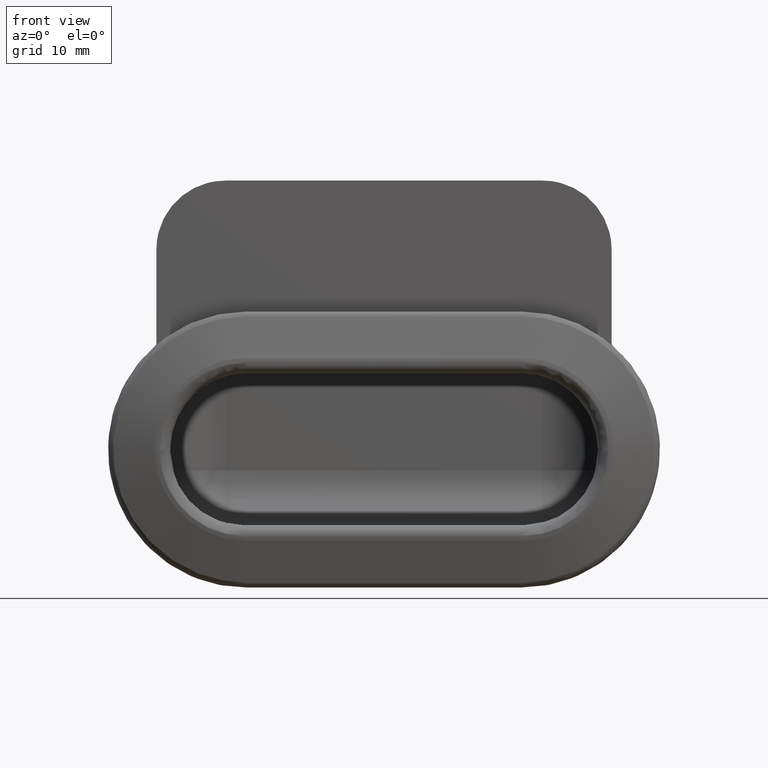
[diagram: clean part render]
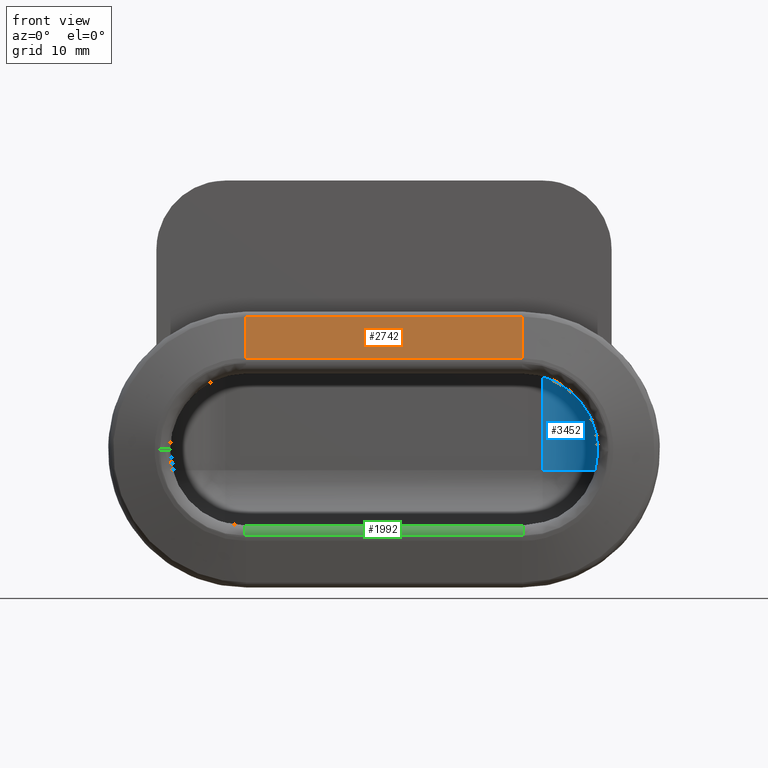
[diagram: same view with three faces highlighted in distinct colors, each labeled with its STEP entity id]
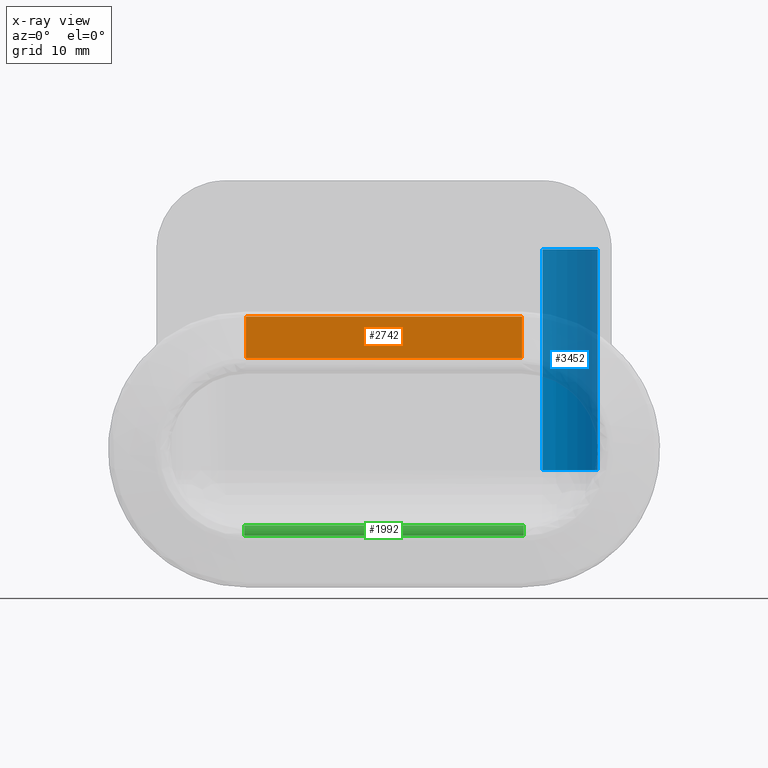
[diagram: x-ray of the same camera — body ghosted, the three highlighted faces saturated]
A machine part, front view with three faces highlighted in distinct colors.
The next image is the same camera in x-ray (body ghosted, the three faces saturated) — at least one of them is partly hidden behind the body in this view.
Their STEP definitions:

[orange] entity #2742 — the highlighted face is a freeform B-spline surface patch.
#1399=CARTESIAN_POINT('',(-20.0,1.792777465113545,19.274721127897401));
#1400=VERTEX_POINT('',#1399);
#1463=CARTESIAN_POINT('',(20.0,1.792777465113545,19.274721127897401));
#1464=VERTEX_POINT('',#1463);
#1486=CARTESIAN_POINT('',(20.0,1.792777465113545,19.274721127897401));
#1487=CARTESIAN_POINT('',(-20.0,1.792777465113545,19.274721127897401));
#1488=QUASI_UNIFORM_CURVE('',1,(#1486,#1487),.UNSPECIFIED.,.F.,.U.);
#1489=EDGE_CURVE('',#1464,#1400,#1488,.T.);
#2569=CARTESIAN_POINT('',(20.0,0.076952104718354,13.269332366514240));
#2570=VERTEX_POINT('',#2569);
#2645=CARTESIAN_POINT('',(-20.0,0.076952104718354,13.269332366514240));
#2646=VERTEX_POINT('',#2645);
#2709=CARTESIAN_POINT('',(-20.0,0.076952104718354,13.269332366514240));
#2710=CARTESIAN_POINT('',(20.0,0.076952104718354,13.269332366514240));
#2711=QUASI_UNIFORM_CURVE('',1,(#2709,#2710),.UNSPECIFIED.,.F.,.U.);
#2712=EDGE_CURVE('',#2646,#2570,#2711,.T.);
#2723=CARTESIAN_POINT('',(-21.997999922472239,1.878482944669819,19.574690306344358));
#2724=CARTESIAN_POINT('',(-21.997999922472239,-0.008753543585332,12.969362597451340));
#2725=CARTESIAN_POINT('',(21.998000995355842,1.878482944669819,19.574690306344358));
#2726=CARTESIAN_POINT('',(21.998000995355842,-0.008753543585332,12.969362597451340));
#2727=B_SPLINE_SURFACE_WITH_KNOTS('',1,1,((#2723,#2725),(#2724,#2726)),.UNSPECIFIED.,.F.,.F.,.U.,(2,2),(2,2),(0.0,6.869644510778667),(0.0,43.996000917828077),.UNSPECIFIED.);
#2728=CARTESIAN_POINT('',(20.0,0.076952104718354,13.269332366514240));
#2729=CARTESIAN_POINT('',(20.0,1.792777465113545,19.274721127897401));
#2730=QUASI_UNIFORM_CURVE('',1,(#2728,#2729),.UNSPECIFIED.,.F.,.U.);
#2731=EDGE_CURVE('',#2570,#1464,#2730,.T.);
#2732=ORIENTED_EDGE('',*,*,#2731,.T.);
#2733=ORIENTED_EDGE('',*,*,#1489,.T.);
#2734=CARTESIAN_POINT('',(-20.0,1.792777465113545,19.274721127897401));
#2735=CARTESIAN_POINT('',(-20.0,0.076952104718354,13.269332366514240));
#2736=QUASI_UNIFORM_CURVE('',1,(#2734,#2735),.UNSPECIFIED.,.F.,.U.);
#2737=EDGE_CURVE('',#1400,#2646,#2736,.T.);
#2738=ORIENTED_EDGE('',*,*,#2737,.T.);
#2739=ORIENTED_EDGE('',*,*,#2712,.T.);
#2740=EDGE_LOOP('',(#2732,#2733,#2738,#2739));
#2741=FACE_OUTER_BOUND('',#2740,.T.);
#2742=ADVANCED_FACE('',(#2741),#2727,.T.);

[blue] entity #3452 — the highlighted face is a freeform B-spline surface patch.
#3179=CARTESIAN_POINT('',(31.0,27.0,-3.0));
#3180=VERTEX_POINT('',#3179);
#3228=CARTESIAN_POINT('',(23.0,35.0,-3.0));
#3229=VERTEX_POINT('',#3228);
#3230=CARTESIAN_POINT('',(23.0,35.0,-3.0));
#3231=CARTESIAN_POINT('',(31.000000000000007,34.999999999999993,-3.0));
#3232=CARTESIAN_POINT('',(31.0,27.0,-3.0));
#3240=(BOUNDED_CURVE()B_SPLINE_CURVE(2,(#3230,#3231,#3232),.UNSPECIFIED.,.F.,.U.)CURVE()GEOMETRIC_REPRESENTATION_ITEM()QUASI_UNIFORM_CURVE()RATIONAL_B_SPLINE_CURVE((1.0,0.707106781186548,1.0))REPRESENTATION_ITEM(''));
#3241=EDGE_CURVE('',#3229,#3180,#3240,.T.);
#3408=CARTESIAN_POINT('',(22.651044901077309,34.992385772654863,-3.800000000000002));
#3409=CARTESIAN_POINT('',(22.651044901077309,34.992385772654863,29.820000000000011));
#3410=CARTESIAN_POINT('',(31.608482115672295,35.383475927487872,-3.800000000000001));
#3411=CARTESIAN_POINT('',(31.608482115672295,35.383475927487872,29.820000000000000));
#3412=CARTESIAN_POINT('',(30.980343305855342,26.439535263651820,-3.800000000000002));
#3413=CARTESIAN_POINT('',(30.980343305855342,26.439535263651820,29.820000000000004));
#3421=(BOUNDED_SURFACE()B_SPLINE_SURFACE(1,2,((#3408,#3410,#3412),(#3409,#3411,#3413)),.UNSPECIFIED.,.F.,.F.,.U.)B_SPLINE_SURFACE_WITH_KNOTS((2,2),(3,3),(0.0,33.620000000000012),(0.0,14.333940318735880),.UNSPECIFIED.)GEOMETRIC_REPRESENTATION_ITEM()RATIONAL_B_SPLINE_SURFACE(((1.0,0.664513898535122,0.996233561259061),(1.0,0.664513898535122,0.996233561259061)))REPRESENTATION_ITEM('')SURFACE());
#3422=CARTESIAN_POINT('',(23.0,35.0,29.0));
#3423=VERTEX_POINT('',#3422);
#3424=CARTESIAN_POINT('',(23.0,35.0,-3.0));
#3425=CARTESIAN_POINT('',(23.0,35.0,29.0));
#3426=QUASI_UNIFORM_CURVE('',1,(#3424,#3425),.UNSPECIFIED.,.F.,.U.);
#3427=EDGE_CURVE('',#3229,#3423,#3426,.T.);
#3428=ORIENTED_EDGE('',*,*,#3427,.F.);
#3429=ORIENTED_EDGE('',*,*,#3241,.T.);
#3430=CARTESIAN_POINT('',(31.0,27.0,29.0));
#3431=VERTEX_POINT('',#3430);
#3432=CARTESIAN_POINT('',(31.0,27.0,29.0));
#3433=CARTESIAN_POINT('',(31.0,27.0,-3.0));
#3434=QUASI_UNIFORM_CURVE('',1,(#3432,#3433),.UNSPECIFIED.,.F.,.U.);
#3435=EDGE_CURVE('',#3431,#3180,#3434,.T.);
#3436=ORIENTED_EDGE('',*,*,#3435,.F.);
#3437=CARTESIAN_POINT('',(31.0,27.0,29.0));
#3438=CARTESIAN_POINT('',(31.000000000000007,34.999999999999993,29.0));
#3439=CARTESIAN_POINT('',(23.0,35.0,29.0));
#3447=(BOUNDED_CURVE()B_SPLINE_CURVE(2,(#3437,#3438,#3439),.UNSPECIFIED.,.F.,.U.)CURVE()GEOMETRIC_REPRESENTATION_ITEM()QUASI_UNIFORM_CURVE()RATIONAL_B_SPLINE_CURVE((1.0,0.707106781186548,1.0))REPRESENTATION_ITEM(''));
#3448=EDGE_CURVE('',#3431,#3423,#3447,.T.);
#3449=ORIENTED_EDGE('',*,*,#3448,.T.);
#3450=EDGE_LOOP('',(#3428,#3429,#3436,#3449));
#3451=FACE_OUTER_BOUND('',#3450,.T.);
#3452=ADVANCED_FACE('',(#3451),#3421,.F.);

[green] entity #1992 — the highlighted face is a freeform B-spline surface patch.
#1755=CARTESIAN_POINT('',(-20.249742798353900,0.0,-12.500000000000000));
#1756=VERTEX_POINT('',#1755);
#1757=CARTESIAN_POINT('',(-20.249742798353850,1.499999999999714,-11.0));
#1758=VERTEX_POINT('',#1757);
#1759=CARTESIAN_POINT('',(-20.249742798353900,0.0,-12.500000000000000));
#1760=CARTESIAN_POINT('',(-20.249742798353900,0.0,-11.000000000000002));
#1761=CARTESIAN_POINT('',(-20.249742798353850,1.499999999999714,-11.0));
#1769=(BOUNDED_CURVE()B_SPLINE_CURVE(2,(#1759,#1760,#1761),.UNSPECIFIED.,.F.,.U.)CURVE()GEOMETRIC_REPRESENTATION_ITEM()QUASI_UNIFORM_CURVE()RATIONAL_B_SPLINE_CURVE((1.0,0.707106781186548,1.0))REPRESENTATION_ITEM(''));
#1770=EDGE_CURVE('',#1756,#1758,#1769,.T.);
#1948=CARTESIAN_POINT('',(-21.262229938271599,0.000514012536672,-12.539265422462099));
#1949=CARTESIAN_POINT('',(21.287542116769529,0.000514012536672,-12.539265422462099));
#1950=CARTESIAN_POINT('',(-21.262229938271592,-0.042738390249699,-10.887522799168213));
#1951=CARTESIAN_POINT('',(21.287542116769540,-0.042738390249699,-10.887522799168213));
#1952=CARTESIAN_POINT('',(-21.262229938271592,1.605480113438690,-11.003713280928768));
#1953=CARTESIAN_POINT('',(21.287542116769533,1.605480113438690,-11.003713280928768));
#1961=(BOUNDED_SURFACE()B_SPLINE_SURFACE(1,2,((#1948,#1950,#1952),(#1949,#1951,#1953)),.UNSPECIFIED.,.F.,.F.,.U.)B_SPLINE_SURFACE_WITH_KNOTS((2,2),(3,3),(0.0,42.549772055041132),(0.0,2.656713516132542),.UNSPECIFIED.)GEOMETRIC_REPRESENTATION_ITEM()RATIONAL_B_SPLINE_SURFACE(((1.0,0.670944223154768,0.996392648609106),(1.0,0.670944223154768,0.996392648609106)))REPRESENTATION_ITEM('')SURFACE());
#1962=CARTESIAN_POINT('',(20.249742798353900,0.0,-12.500000000000000));
#1963=VERTEX_POINT('',#1962);
#1964=CARTESIAN_POINT('',(20.249742798353850,1.499999999999714,-11.0));
#1965=VERTEX_POINT('',#1964);
#1966=CARTESIAN_POINT('',(20.249742798353900,0.0,-12.500000000000000));
#1967=CARTESIAN_POINT('',(20.249742798353900,0.0,-11.000000000000002));
#1968=CARTESIAN_POINT('',(20.249742798353850,1.499999999999714,-11.0));
#1976=(BOUNDED_CURVE()B_SPLINE_CURVE(2,(#1966,#1967,#1968),.UNSPECIFIED.,.F.,.U.)CURVE()GEOMETRIC_REPRESENTATION_ITEM()QUASI_UNIFORM_CURVE()RATIONAL_B_SPLINE_CURVE((1.0,0.707106781186548,1.0))REPRESENTATION_ITEM(''));
#1977=EDGE_CURVE('',#1963,#1965,#1976,.T.);
#1978=ORIENTED_EDGE('',*,*,#1977,.T.);
#1979=CARTESIAN_POINT('',(-20.249742798353850,1.499999999999714,-11.0));
#1980=CARTESIAN_POINT('',(20.249742798353850,1.499999999999714,-11.0));
#1981=QUASI_UNIFORM_CURVE('',1,(#1979,#1980),.UNSPECIFIED.,.F.,.U.);
#1982=EDGE_CURVE('',#1758,#1965,#1981,.T.);
#1983=ORIENTED_EDGE('',*,*,#1982,.F.);
#1984=ORIENTED_EDGE('',*,*,#1770,.F.);
#1985=CARTESIAN_POINT('',(20.249742798353900,0.0,-12.500000000000000));
#1986=CARTESIAN_POINT('',(-20.249742798353900,0.0,-12.500000000000000));
#1987=QUASI_UNIFORM_CURVE('',1,(#1985,#1986),.UNSPECIFIED.,.F.,.U.);
#1988=EDGE_CURVE('',#1963,#1756,#1987,.T.);
#1989=ORIENTED_EDGE('',*,*,#1988,.F.);
#1990=EDGE_LOOP('',(#1978,#1983,#1984,#1989));
#1991=FACE_OUTER_BOUND('',#1990,.T.);
#1992=ADVANCED_FACE('',(#1991),#1961,.T.);